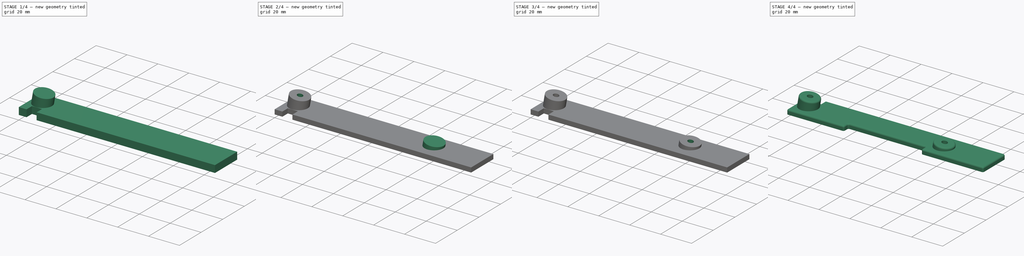
[diagram: build sequence overview — one tinted view per stage of 4, left to right]
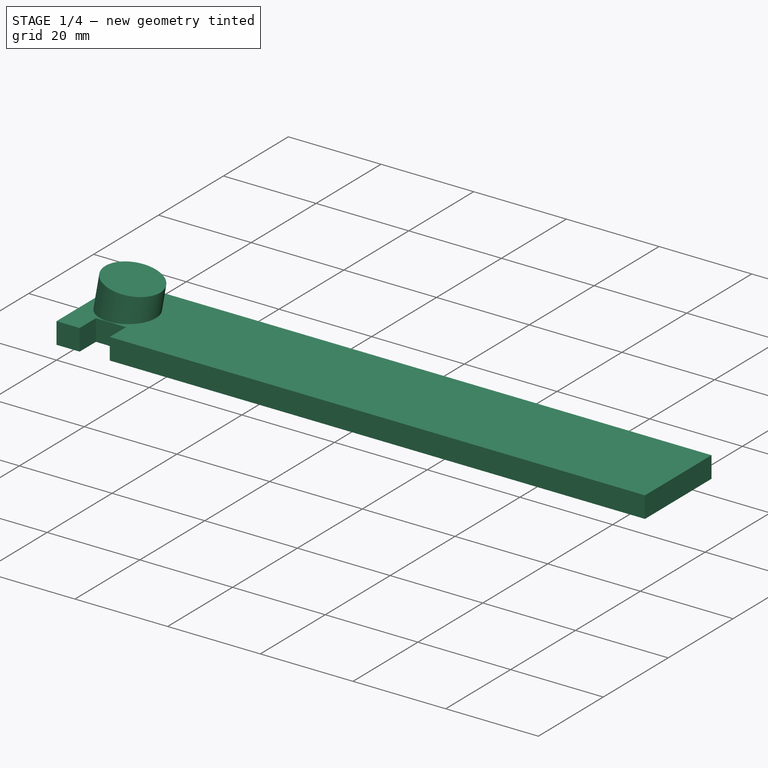
[diagram: stage 1 of 4 — iso view after this stage's code; geometry added in this stage tinted green]
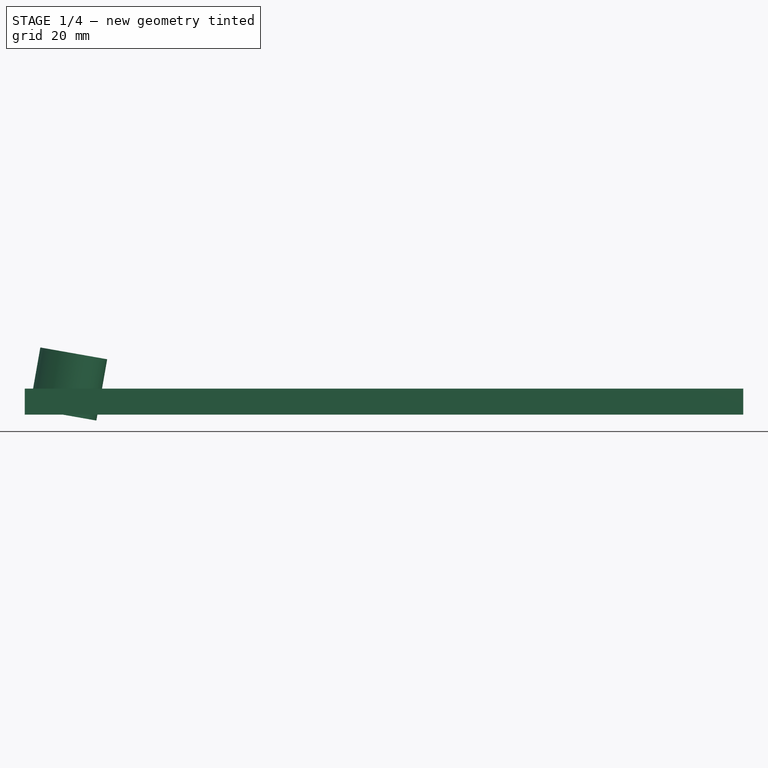
[diagram: stage 1 of 4 — front view after this stage's code; geometry added in this stage tinted green]
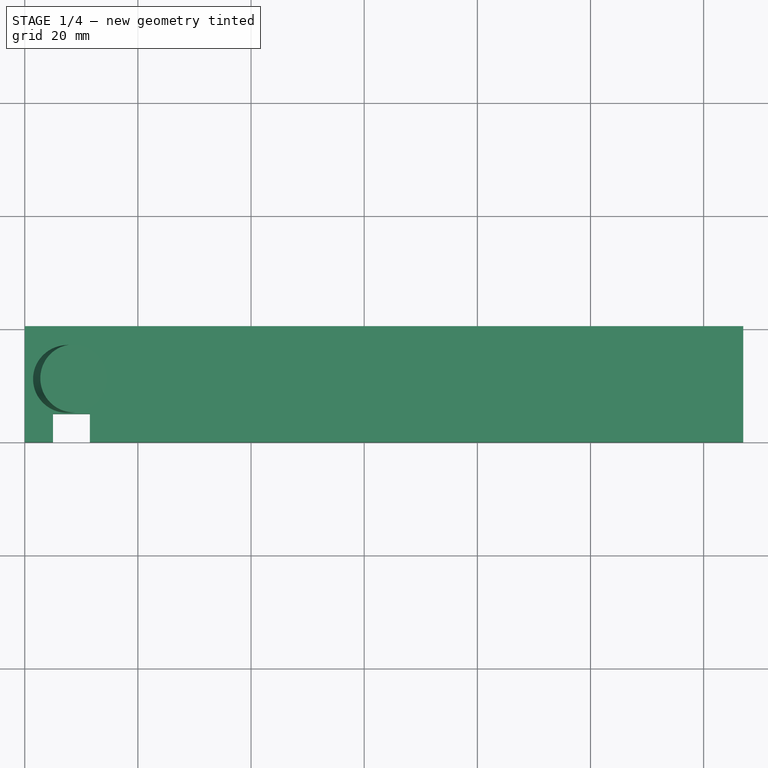
[diagram: stage 1 of 4 — top view after this stage's code; geometry added in this stage tinted green]
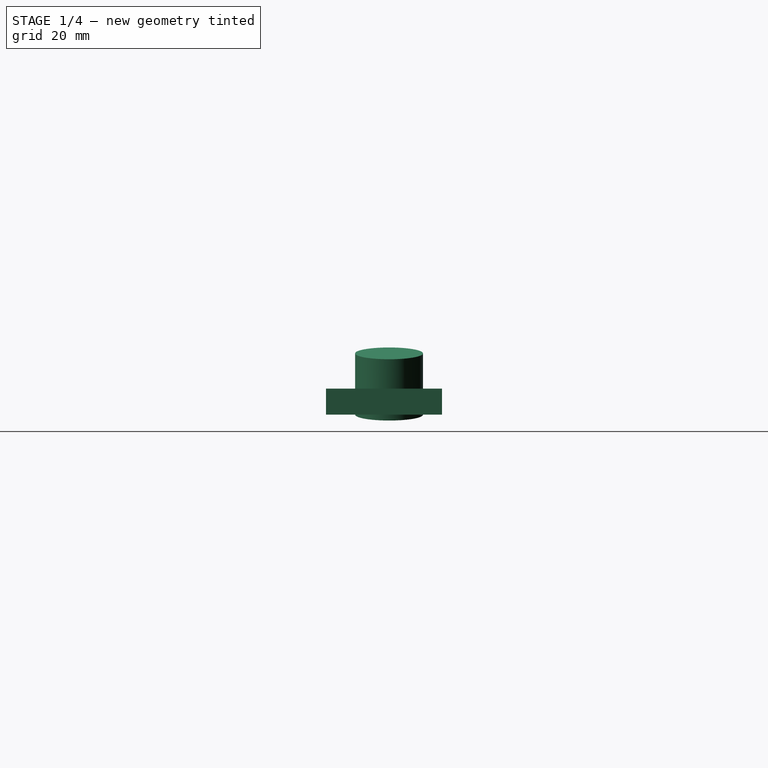
[diagram: stage 1 of 4 — right view after this stage's code; geometry added in this stage tinted green]
FCSTD DOCUMENT  (FreeCAD 0.21R33668 +7 (Git))
Label: Decent1200Brackets
License: All rights reserved
LicenseURL: http://en.wikipedia.org/wiki/All_rights_reserved
objects: Sketcher::SketchObject×9, PartDesign::Pocket×7, PartDesign::Line×2, PartDesign::Plane×2, PartDesign::Pad×2, App::Part×2, PartDesign::AdditiveBox×1, PartDesign::Fillet×1, PartDesign::Body×1, Part::FeaturePython×1
note: 37 computed .brp shape members not serialized (recipe doc carries the construction recipe); baked Part::Feature solids carry a one-line shape summary decoded from their .brp

FEATURE [PartDesign::AdditiveBox] Box
  AttacherType = Attacher::AttachEngine3D
  Height = 4.6
  Length = 127
  Width = 20.5
FEATURE [Sketcher::SketchObject] Sketch
  FullyConstrained = true
  MapMode = 5
  Placement = pos=(0,0,4.6) rot=(0,0,1;0rad)
  Support = -> [Box]
  sketch-geometry (4):
    g0: LineSegment StartX=5 StartY=0 StartZ=0 EndX=11.5 EndY=0 EndZ=0
    g1: LineSegment StartX=11.5 StartY=0 StartZ=0 EndX=11.5 EndY=5 EndZ=0
    g2: LineSegment StartX=11.5 StartY=5 StartZ=0 EndX=5 EndY=5 EndZ=0
    g3: LineSegment StartX=5 StartY=5 StartZ=0 EndX=5 EndY=0 EndZ=0
  constraints (12):
    c: Coincident(g0,g1)
    c: Coincident(g1,g2)
    c: Coincident(g2,g3)
    c: Coincident(g3,g0)
    c: Horizontal(g0)
    c: Horizontal(g2)
    c: Vertical(g1)
    c: Vertical(g3)
    c: PointOnObject(g0,g-1)
    c: DistanceX(g-1,g0) = 5
    c: DistanceX(g2,g2) = 6.5
    c: DistanceY(g1,g1) = 5
FEATURE [PartDesign::Pocket] Pocket
  BaseFeature = -> Box
  Direction = (0,0,-1)
  Length = 5
  Length2 = 5
  Profile = -> Sketch
  ReferenceAxis = -> Sketch [N_Axis]
  Type = 1
FEATURE [PartDesign::Line] DatumLine  label="TopColumnDatumLine"
  AttacherType = Attacher::AttachEngineLine
  AttachmentOffset = pos=(-6.75,0,0) rot=(0,0,1;0rad)
  Length = 20
  MapMode = 29
  Placement = pos=(6.75,0,0) rot=(0,0.707107,0.707107;3.14159rad)
  ResizeMode = 0
  Support = -> [Pocket]
FEATURE [PartDesign::Line] DatumLine001  label="BottomColumnDatumLine"
  AttacherType = Attacher::AttachEngineLine
  AttachmentOffset = pos=(32.7,0,0) rot=(0,0,1;0rad)
  Length = 20
  MapMode = 29
  Placement = pos=(94.3,0,0) rot=(0,0.707107,0.707107;3.14159rad)
  ResizeMode = 0
  Support = -> [Pocket]
FEATURE [PartDesign::Plane] DatumPlane  label="TopColumnDatumPlane"
  AttachmentOffset = pos=(0,0,0) rot=(0,1,0;0.174533rad)
  Length = 176.171
  MapMode = 3
  Placement = pos=(6.75,0,0) rot=(0,1,0;3.31613rad)
  ResizeMode = 0
  Support = -> [DatumLine]
  Width = 67.7974
FEATURE [PartDesign::Plane] DatumPlane001  label="BottomColumnDatumPlane"
  AttachmentOffset = pos=(0,0,0) rot=(0,1,0;0.174533rad)
  Length = 176.171
  MapMode = 3
  Placement = pos=(94.3,0,0) rot=(0,1,0;3.31613rad)
  ResizeMode = 0
  Support = -> [DatumLine001]
  Width = 67.7974
FEATURE [Sketcher::SketchObject] Sketch001  label="TopColumnSketch"
  FullyConstrained = true
  MapMode = 5
  Placement = pos=(6.75,0,0) rot=(0,1,0;3.31613rad)
  Support = -> [DatumPlane]
  sketch-geometry (1):
    g0: Circle CenterX=0 CenterY=11.15 CenterZ=0 NormalX=0 NormalY=0 NormalZ=1 AngleXU=0 Radius=6
  constraints (3):
    c: PointOnObject(g0,g-2)
    c: Diameter(g0) = 12
    c: DistanceY(g-1,g0) = 11.15
FEATURE [PartDesign::Pad] Pad  label="TopColumnOuterPad"
  BaseFeature = -> Pocket
  Direction = (-0.173648,-2e-16,-0.984808)
  Length = 11
  Length2 = 10
  Profile = -> Sketch001
  ReferenceAxis = -> Sketch001 [N_Axis]
  Reversed = true
  Type = 0
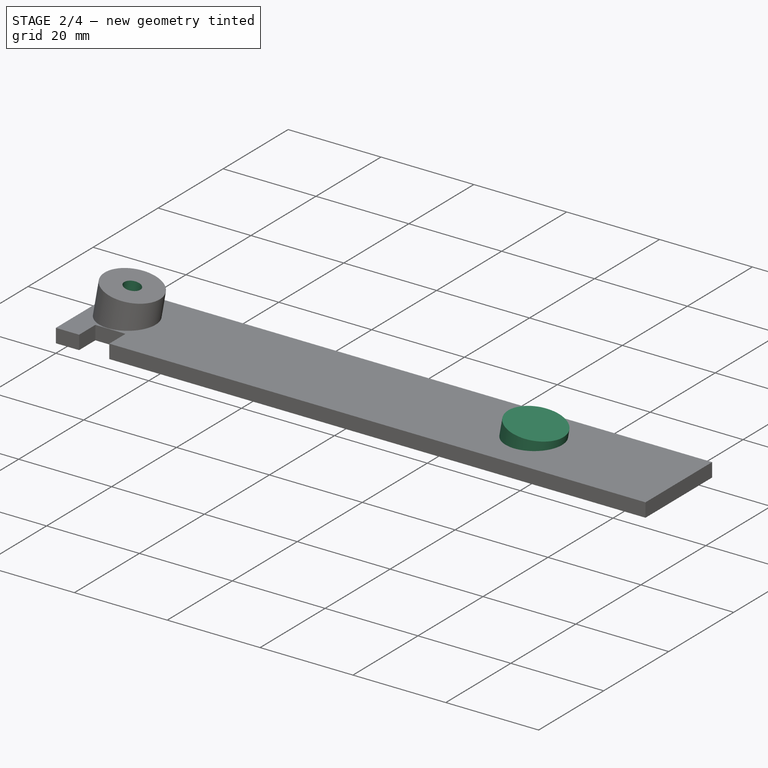
[diagram: stage 2 of 4 — iso view after this stage's code; geometry added in this stage tinted green]
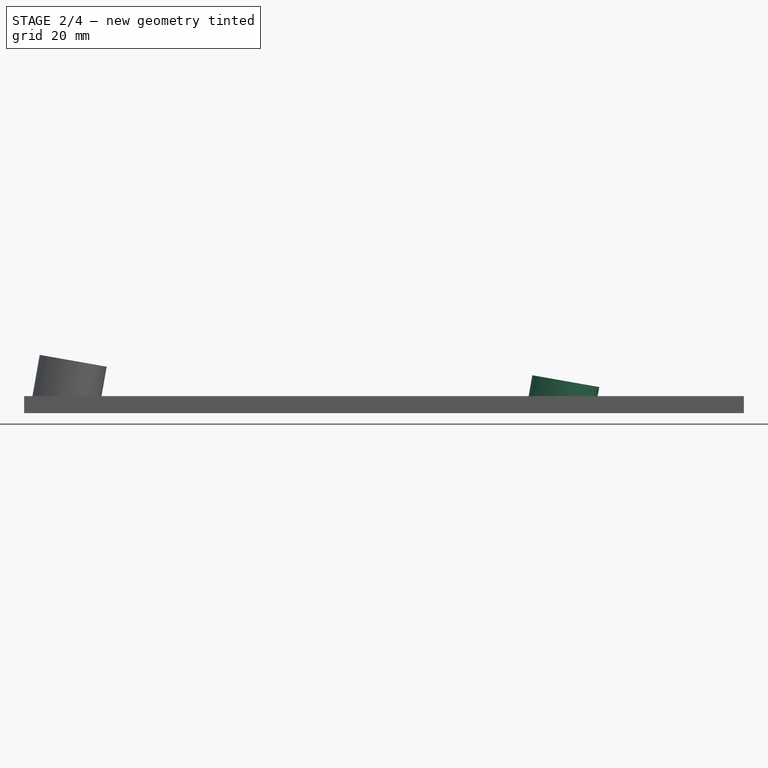
[diagram: stage 2 of 4 — front view after this stage's code; geometry added in this stage tinted green]
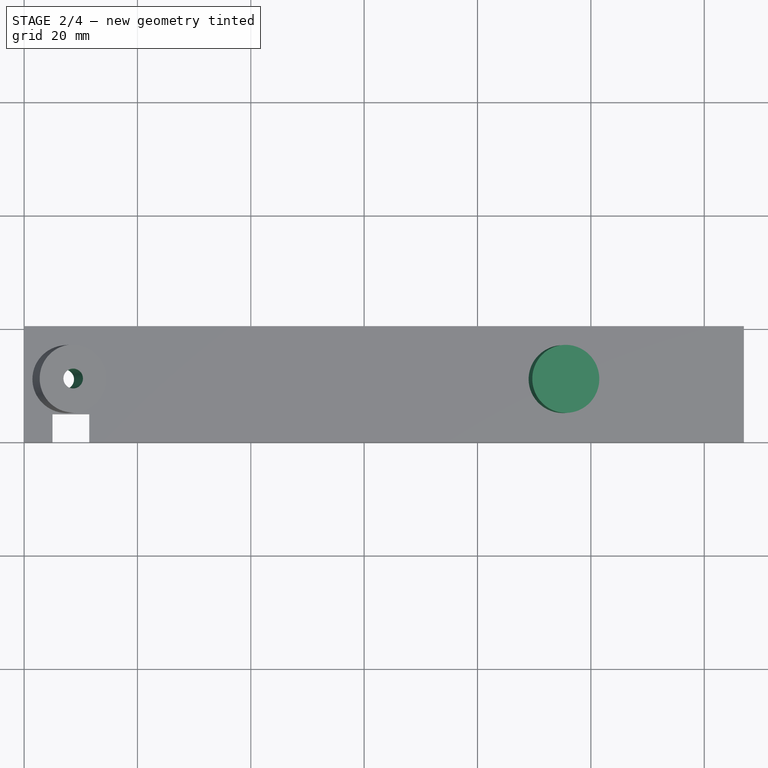
[diagram: stage 2 of 4 — top view after this stage's code; geometry added in this stage tinted green]
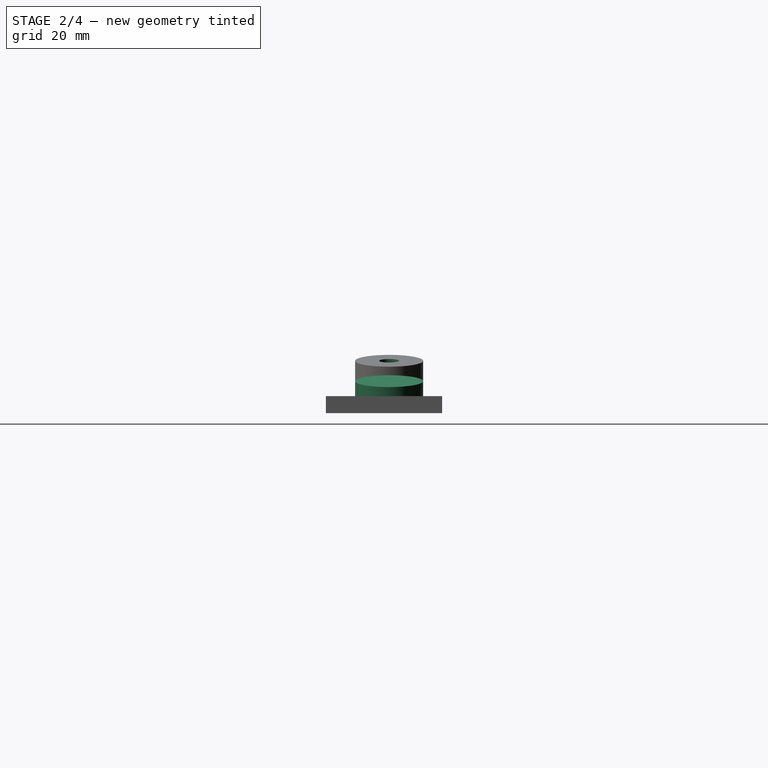
[diagram: stage 2 of 4 — right view after this stage's code; geometry added in this stage tinted green]
FEATURE [Sketcher::SketchObject] Sketch002  label="BottomColumnSketch"
  FullyConstrained = true
  MapMode = 5
  Placement = pos=(94.3,0,0) rot=(0,1,0;3.31613rad)
  Support = -> [DatumPlane001]
  sketch-geometry (1):
    g0: Circle CenterX=0 CenterY=11.15 CenterZ=0 NormalX=0 NormalY=0 NormalZ=1 AngleXU=0 Radius=6
  constraints (3):
    c: PointOnObject(g0,g-2)
    c: DistanceY(g-1,g0) = 11.15
    c: Diameter(g0) = 12
FEATURE [PartDesign::Pad] Pad001  label="BottomColumnOuterPad"
  BaseFeature = -> Pad
  Direction = (-0.173648,-2e-16,-0.984808)
  Length = 7.35
  Length2 = 10
  Profile = -> Sketch002
  ReferenceAxis = -> Sketch002 [N_Axis]
  Reversed = true
  Type = 0
FEATURE [Sketcher::SketchObject] Sketch003  label="BottomSketch"
  AttachmentOffset = pos=(0,0,-1.6) rot=(0,0,1;0rad)
  ExternalGeometry = -> [Pad001]
  FullyConstrained = true
  MapMode = 5
  Placement = pos=(0,0,1.6) rot=(1,0,0;3.14159rad)
  Support = -> [Pad001]
  sketch-geometry (4):
    g0: LineSegment StartX=0 StartY=0 StartZ=0 EndX=127 EndY=0 EndZ=0
    g1: LineSegment StartX=127 StartY=0 StartZ=0 EndX=127 EndY=-20.5 EndZ=0
    g2: LineSegment StartX=127 StartY=-20.5 StartZ=0 EndX=0 EndY=-20.5 EndZ=0
    g3: LineSegment StartX=0 StartY=-20.5 StartZ=0 EndX=0 EndY=0 EndZ=0
  constraints (10):
    c: Coincident(g0,g1)
    c: Coincident(g1,g2)
    c: Coincident(g2,g3)
    c: Coincident(g3,g0)
    c: Horizontal(g0)
    c: Horizontal(g2)
    c: Vertical(g1)
    c: Vertical(g3)
    c: Coincident(g0,g-1)
    c: Coincident(g1,g-3)
FEATURE [PartDesign::Pocket] Pocket001  label="TrimBodyToBottomPlane"
  BaseFeature = -> Pad001
  Direction = (0,0,1)
  Length = 5
  Length2 = 5
  Profile = -> Sketch003
  ReferenceAxis = -> Sketch003 [N_Axis]
  Refine = true
  Reversed = true
  Type = 1
FEATURE [Sketcher::SketchObject] Sketch004  label="TopScrewHoleSketch"
  ExternalGeometry = -> [Pocket001]
  FullyConstrained = true
  MapMode = 5
  Placement = pos=(2.11367,2.7e-15,11.9872) rot=(0,1,0;0.174533rad)
  Support = -> [Pocket001]
  sketch-geometry (1):
    g0: Circle CenterX=6.64745 CenterY=11.15 CenterZ=0 NormalX=0 NormalY=0 NormalZ=1 AngleXU=0 Radius=1.75
  constraints (2):
    c: Coincident(g0,g-3)
    c: Diameter(g0) = 3.5
FEATURE [PartDesign::Pocket] Pocket002  label="TopScrewHole"
  BaseFeature = -> Pocket001
  Direction = (-0.173648,-2e-16,-0.984808)
  Length = 5
  Length2 = 5
  Profile = -> Sketch004
  ReferenceAxis = -> Sketch004 [N_Axis]
  Type = 1
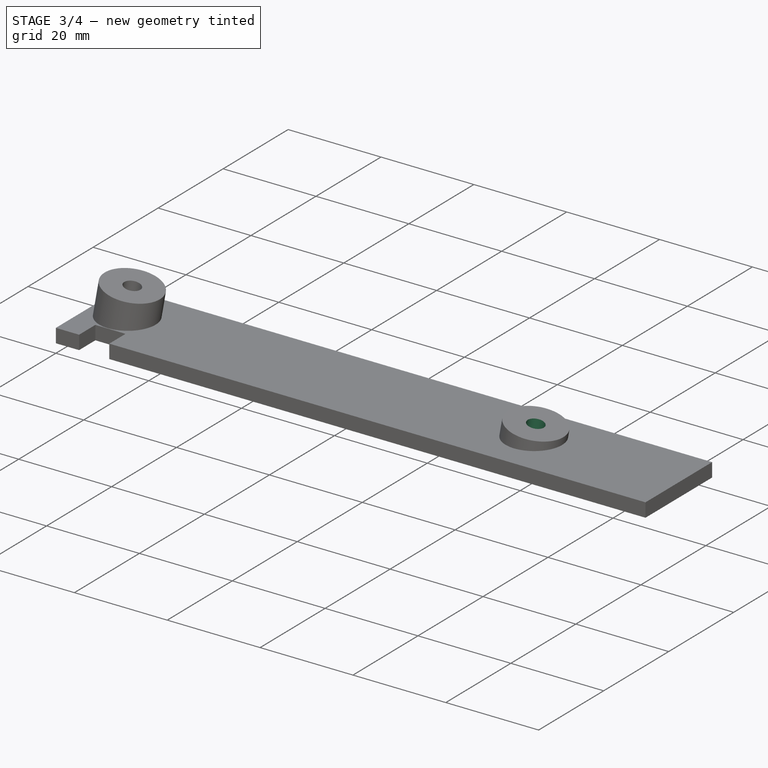
[diagram: stage 3 of 4 — iso view after this stage's code; geometry added in this stage tinted green]
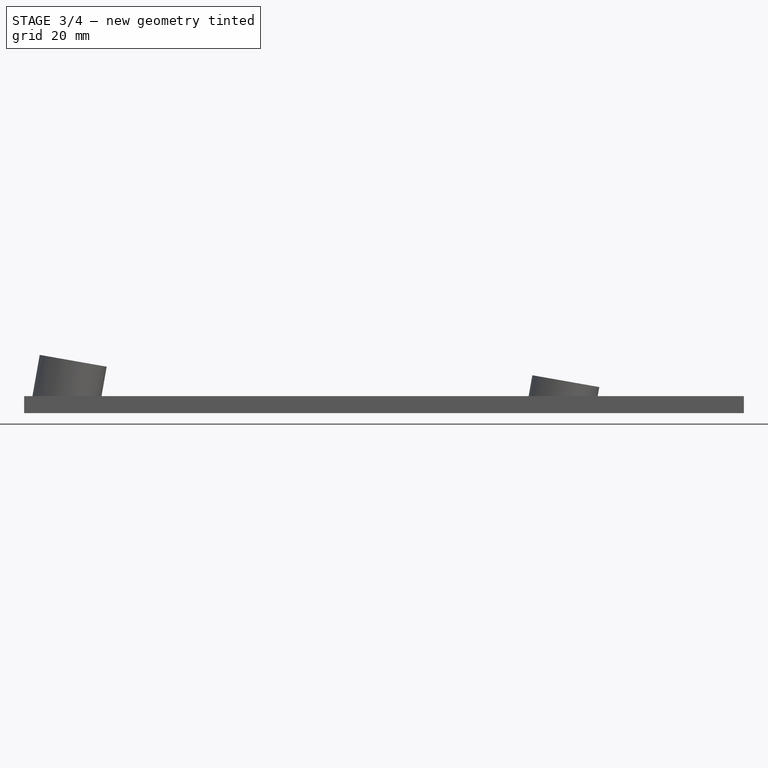
[diagram: stage 3 of 4 — front view after this stage's code; geometry added in this stage tinted green]
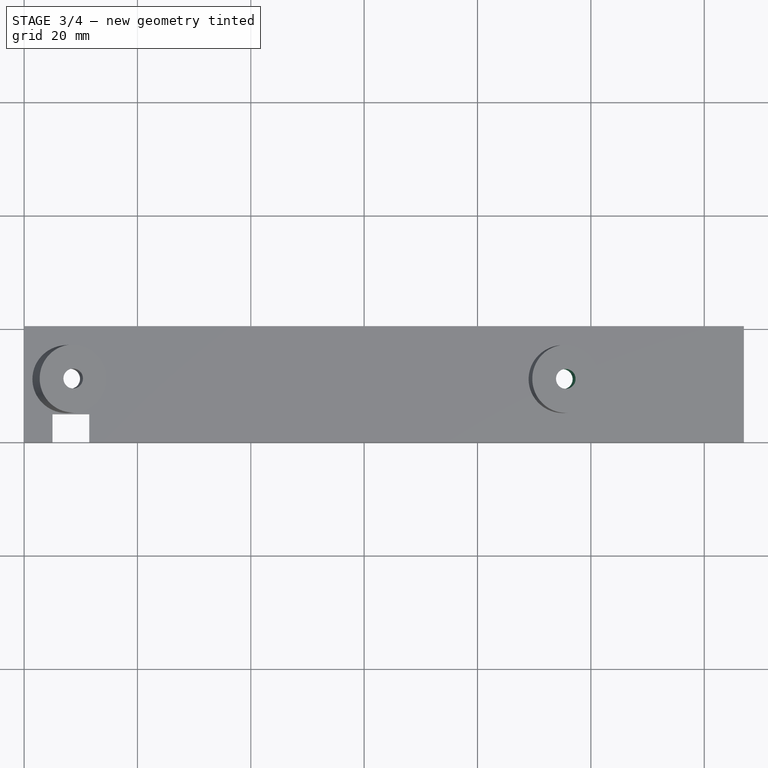
[diagram: stage 3 of 4 — top view after this stage's code; geometry added in this stage tinted green]
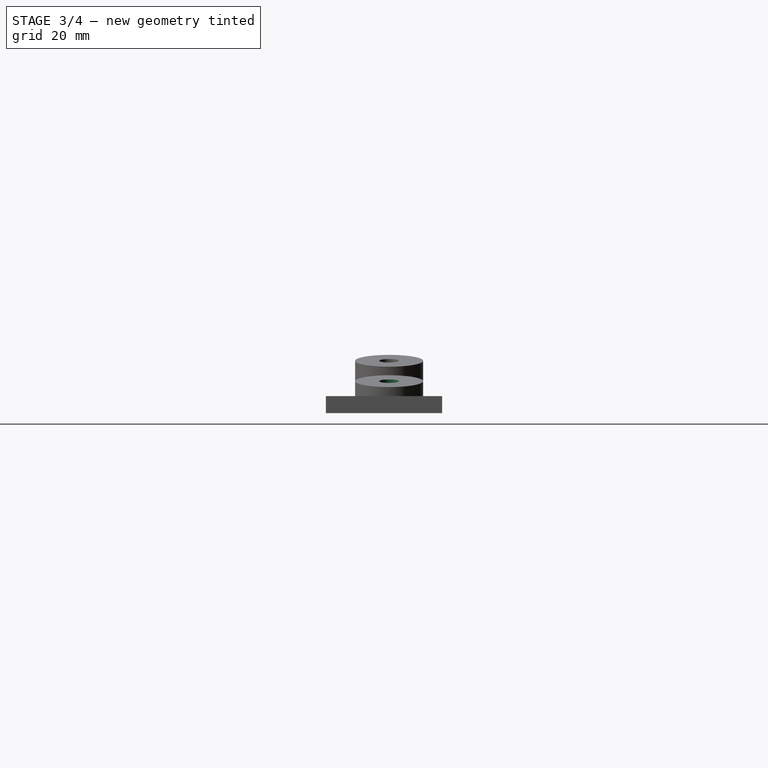
[diagram: stage 3 of 4 — right view after this stage's code; geometry added in this stage tinted green]
FEATURE [Sketcher::SketchObject] Sketch005  label="BottomScrewHoleSketch"
  ExternalGeometry = -> [Pocket002]
  FullyConstrained = true
  MapMode = 5
  Placement = pos=(4.11981,9.2e-15,23.3646) rot=(0,1,0;0.174533rad)
  Support = -> [Pocket002]
  sketch-geometry (1):
    g0: Circle CenterX=92.8674 CenterY=11.15 CenterZ=0 NormalX=0 NormalY=0 NormalZ=1 AngleXU=0 Radius=1.75
  constraints (2):
    c: Coincident(g0,g-3)
    c: Diameter(g0) = 3.5
FEATURE [PartDesign::Pocket] Pocket003  label="BottomScrewHole"
  BaseFeature = -> Pocket002
  Direction = (-0.173648,-4e-16,-0.984808)
  Length = 5
  Length2 = 5
  Profile = -> Sketch005
  ReferenceAxis = -> Sketch005 [N_Axis]
  Type = 1
FEATURE [Sketcher::SketchObject] Sketch006  label="TopColumnHoleSketch"
  AttachmentOffset = pos=(0,0,-3) rot=(0,0,1;0rad)
  ExternalGeometry = -> [Pocket003]
  FullyConstrained = true
  MapMode = 5
  Placement = pos=(1.59272,2e-15,9.03278) rot=(0,1,0;0.174533rad)
  Support = -> [Pocket003]
  sketch-geometry (1):
    g0: Circle CenterX=6.64745 CenterY=11.15 CenterZ=0 NormalX=0 NormalY=0 NormalZ=1 AngleXU=0 Radius=4
  constraints (2):
    c: Coincident(g0,g-3)
    c: Diameter(g0) = 8
FEATURE [PartDesign::Pocket] Pocket004  label="TopColumnHole"
  BaseFeature = -> Pocket003
  Direction = (-0.173648,-2e-16,-0.984808)
  Length = 5
  Length2 = 5
  Profile = -> Sketch006
  ReferenceAxis = -> Sketch006 [N_Axis]
  Type = 1
FEATURE [Sketcher::SketchObject] Sketch007  label="BottomColumnHoleSketch"
  AttachmentOffset = pos=(0,0,-3) rot=(0,0,1;0rad)
  ExternalGeometry = -> [Pocket004]
  FullyConstrained = true
  MapMode = 5
  Placement = pos=(3.59886,8e-15,20.4102) rot=(0,1,0;0.174533rad)
  Support = -> [Pocket004]
  sketch-geometry (1):
    g0: Circle CenterX=92.8674 CenterY=11.15 CenterZ=0 NormalX=0 NormalY=0 NormalZ=1 AngleXU=0 Radius=4
  constraints (2):
    c: Coincident(g0,g-3)
    c: Diameter(g0) = 8
FEATURE [PartDesign::Pocket] Pocket005  label="BottomColumnHole"
  BaseFeature = -> Pocket004
  Direction = (-0.173648,-4e-16,-0.984808)
  Length = 5
  Length2 = 5
  Profile = -> Sketch007
  ReferenceAxis = -> Sketch007 [N_Axis]
  Type = 1
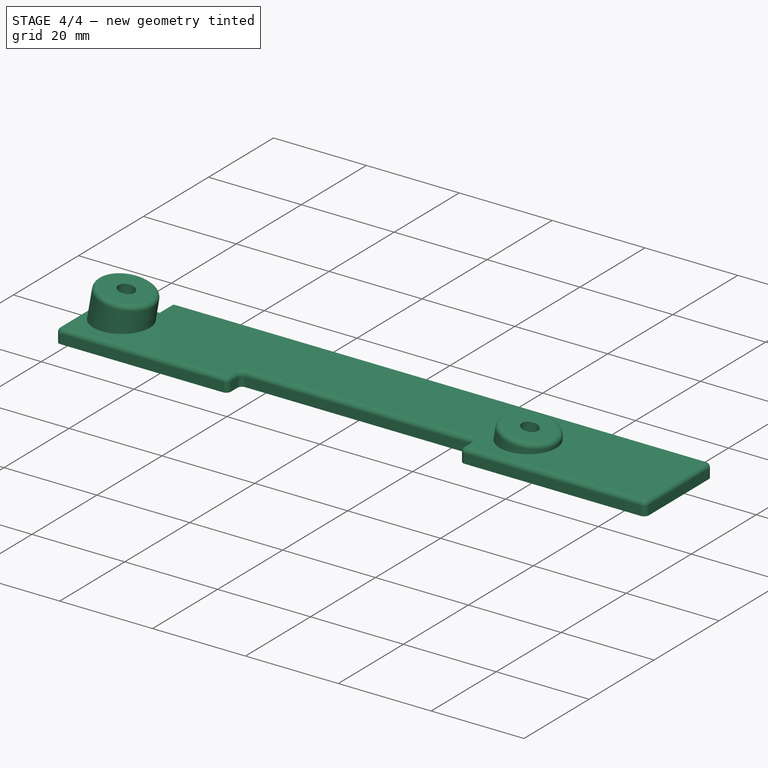
[diagram: stage 4 of 4 — iso view after this stage's code; geometry added in this stage tinted green]
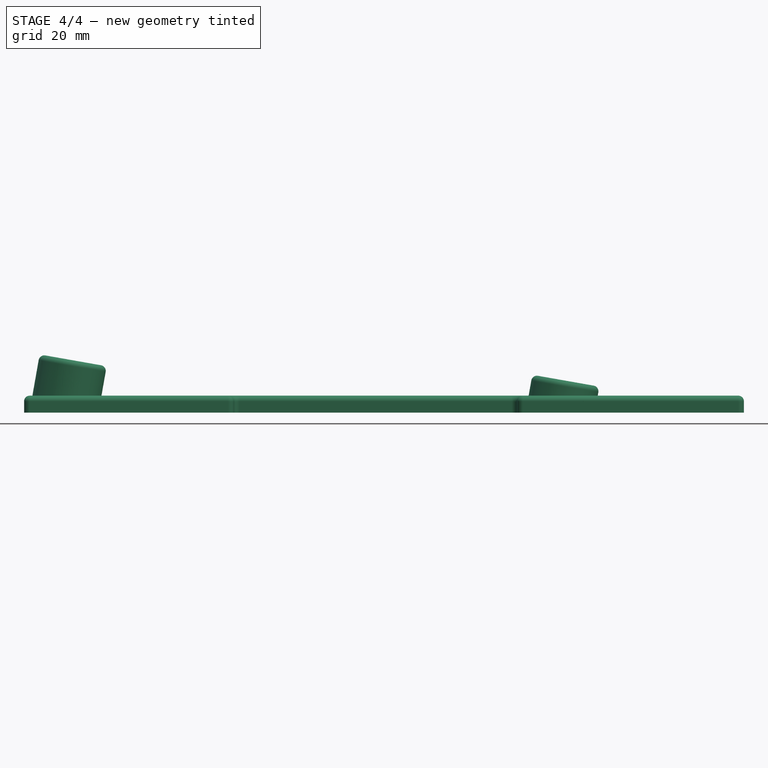
[diagram: stage 4 of 4 — front view after this stage's code; geometry added in this stage tinted green]
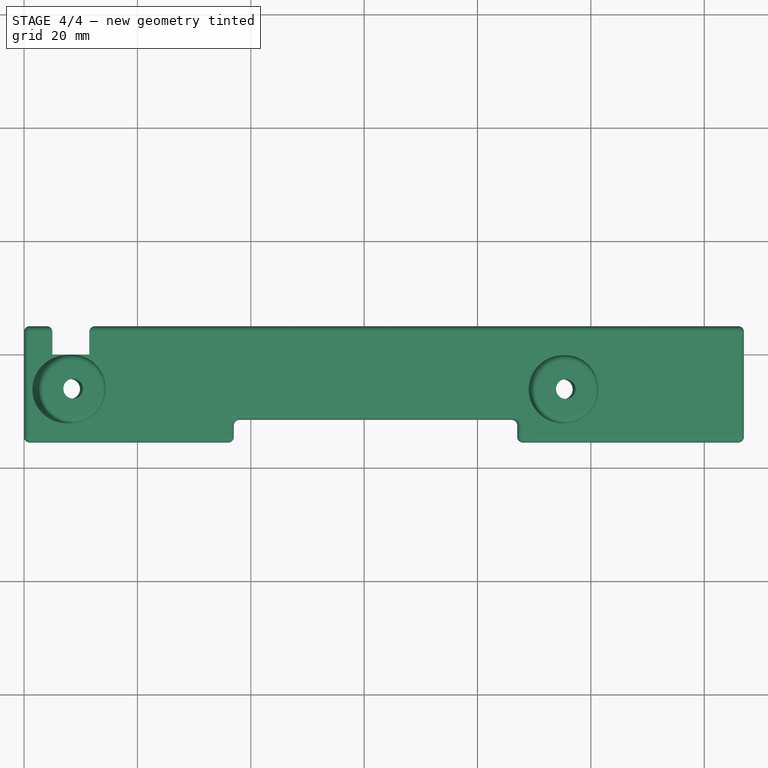
[diagram: stage 4 of 4 — top view after this stage's code; geometry added in this stage tinted green]
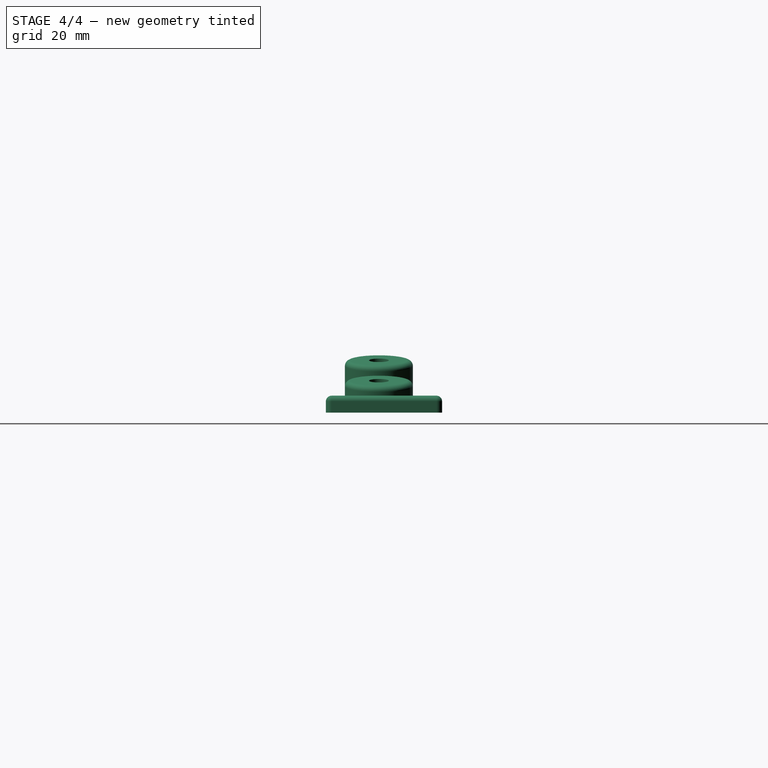
[diagram: stage 4 of 4 — right view after this stage's code; geometry added in this stage tinted green]
FEATURE [Sketcher::SketchObject] Sketch008  label="PcbClearanceSketch"
  ExternalGeometry = -> [Pocket005]
  FullyConstrained = true
  MapMode = 5
  Placement = pos=(0,0,1.6) rot=(1,0,0;3.14159rad)
  Support = -> [Pocket005]
  sketch-geometry (4):
    g0: LineSegment StartX=87 StartY=-20.5 StartZ=0 EndX=37 EndY=-20.5 EndZ=0
    g1: LineSegment StartX=37 StartY=-20.5 StartZ=0 EndX=37 EndY=-16.5 EndZ=0
    g2: LineSegment StartX=87 StartY=-16.5 StartZ=0 EndX=87 EndY=-20.5 EndZ=0
    g3: LineSegment StartX=37 StartY=-16.5 StartZ=0 EndX=87 EndY=-16.5 EndZ=0
  constraints (12):
    c: Coincident(g0,g1)
    c: Coincident(g2,g0)
    c: Horizontal(g0)
    c: Vertical(g1)
    c: Vertical(g2)
    c: Coincident(g3,g1)
    c: Coincident(g3,g2)
    c: Horizontal(g3)
    c: DistanceY(g2,g2) = 4
    c: PointOnObject(g0,g-3)
    c: DistanceX(g-3,g0) = 37
    c: DistanceX(g0,g-3) = 40
FEATURE [PartDesign::Pocket] Pocket006  label="PcbClearance"
  BaseFeature = -> Pocket005
  Direction = (0,0,1)
  Length = 5
  Length2 = 5
  Profile = -> Sketch008
  ReferenceAxis = -> Sketch008 [N_Axis]
  Type = 1
FEATURE [PartDesign::Fillet] Fillet
  Base = -> Pocket006 [Edge38,Edge13,Edge37,Edge12,Edge36,Edge14,Edge10,Edge11,Edge9,Edge8,Edge2,Edge7,Edge3,Edge34,Edge6,Edge1,Edge39,Edge35,Edge42,Edge44,Edge20]
  BaseFeature = -> Pocket006
  Radius = 1
  SupportTransform = false
  UseAllEdges = false
FEATURE [PartDesign::Body] Body  label="LeftBracketBody"
  Group = -> [Box,Sketch,Pocket,DatumLine,DatumLine001,DatumPlane,DatumPlane001,Sketch001,Pad,Sketch002,Pad001,Sketch003,Pocket001,Sketch004,Pocket002,Sketch005,Pocket003,Sketch006,Pocket004,Sketch007,Pocket005,Sketch008,Pocket006,Fillet]
  Origin = -> Origin001
  Tip = -> Fillet
FEATURE [App::Part] Part  label="Decent1200LeftBracket"
  Group = -> [Body]
  Origin = -> Origin
FEATURE [Part::FeaturePython] Clone001  label="RightBracketBody"  # Draft clone (typed FeaturePython)
  AttacherType = Attacher::AttachEngine3D
  Fuse = false
  Objects = -> [Body]
  Placement = pos=(0,45,0) rot=(0,0,1;0rad)
  Scale = (1,-1,1)
FEATURE [App::Part] Part001  label="Decent1200RightBracket"
  Group = -> [Clone001]
  Origin = -> Origin002
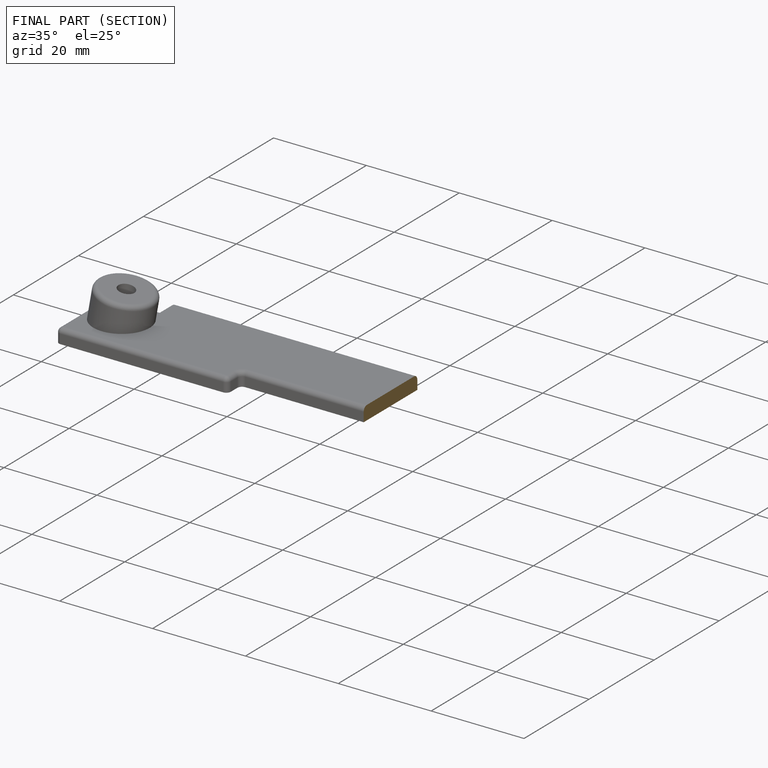
[diagram: finished part — half-section view (interior)]
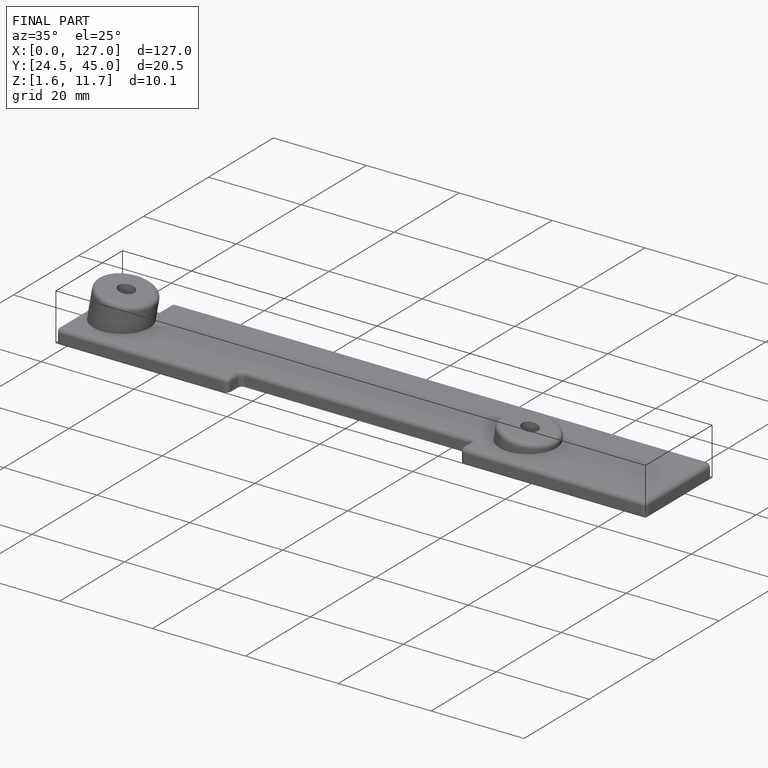
[diagram: finished part — iso view with bounding-box wireframe]
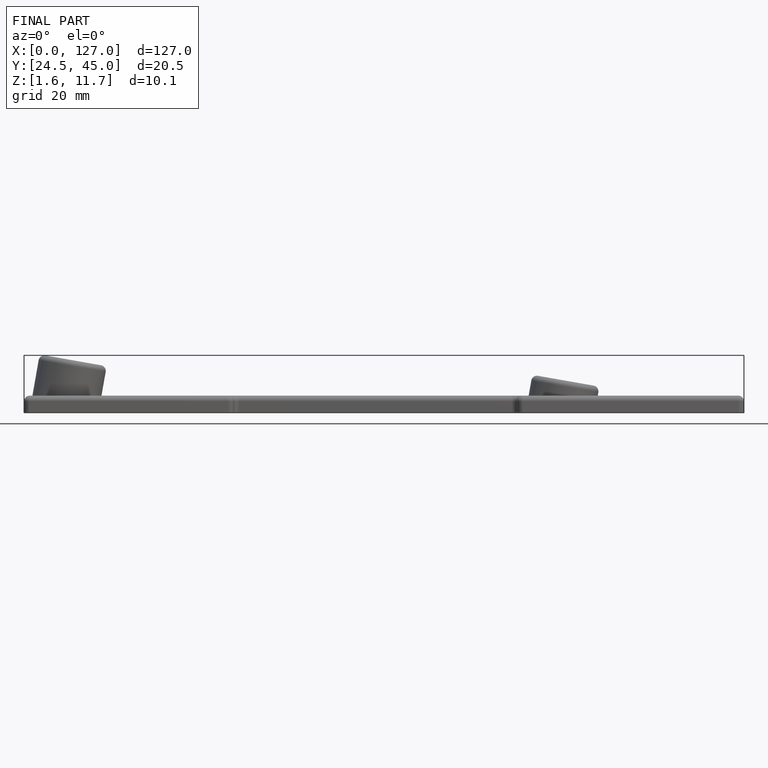
[diagram: finished part — front view with bounding-box wireframe]
